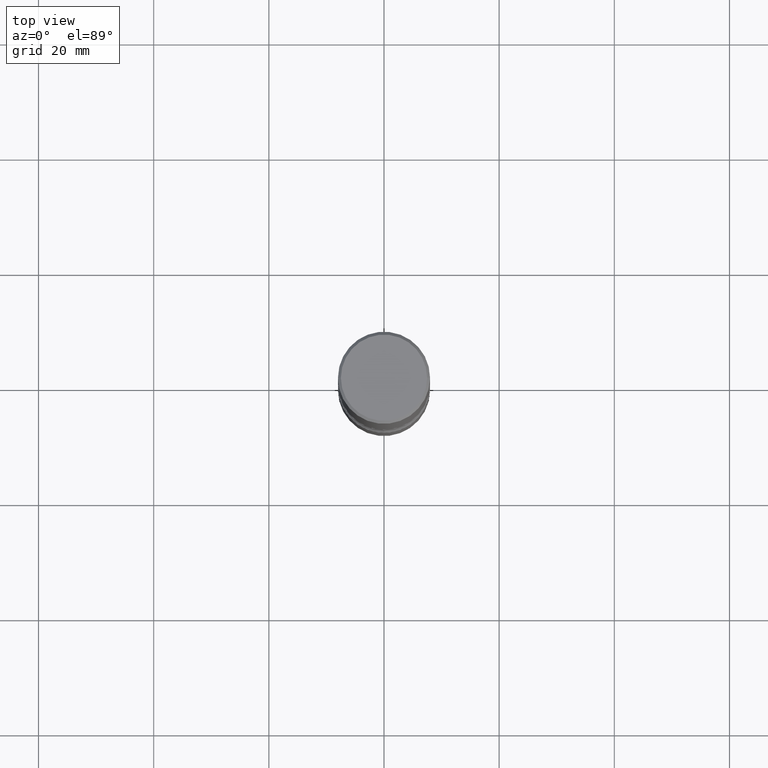
[diagram: clean part render]
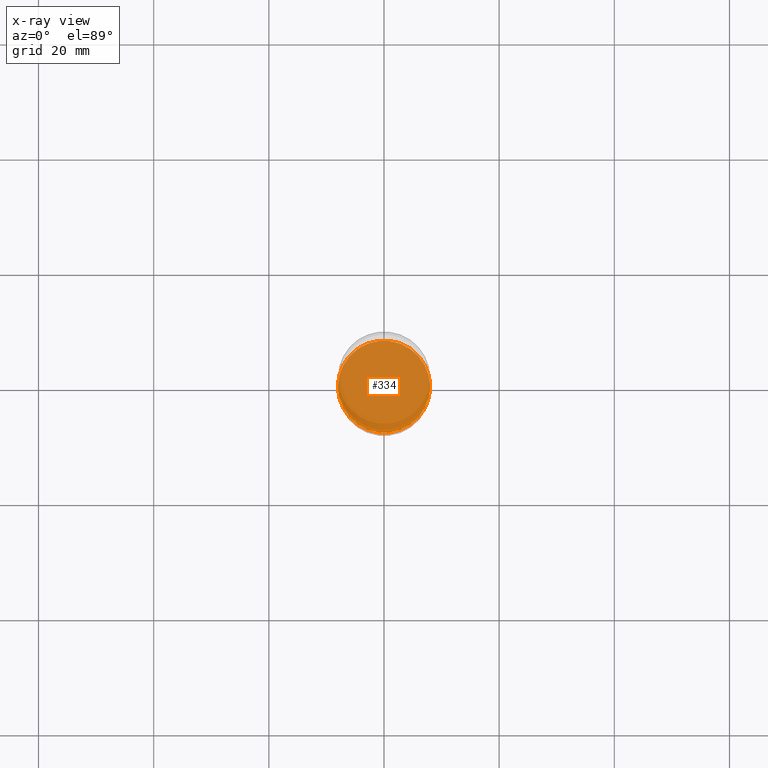
[diagram: x-ray — body ghosted, one internal face saturated and labeled with its STEP entity id]
A machine part, top view, then the same camera in x-ray: the body is ghosted and one INTERNAL B-rep face — a face not visible from any outside direction — is saturated and labeled: STEP entity #334.
In plain terms, the highlighted planar face has unit normal (0, -0, -1).
Its self-contained STEP definition (entity closure, byte-faithful):
#8 = PLANE ( 'NONE',  #161 ) ;
#12 = FACE_OUTER_BOUND ( 'NONE', #85, .T. ) ;
#27 = VERTEX_POINT ( 'NONE', #153 ) ;
#47 = DIRECTION ( 'NONE',  ( 1.000000000000000000, -6.982962677686263555E-15, 0.000000000000000000 ) ) ;
#53 = DIRECTION ( 'NONE',  ( 2.438088387897960049E-29, -3.491481338843145188E-15, -1.000000000000000000 ) ) ;
#69 = EDGE_CURVE ( 'NONE', #463, #27, #546, .T. ) ;
#85 = EDGE_LOOP ( 'NONE', ( #465, #536 ) ) ;
#100 = CARTESIAN_POINT ( 'NONE',  ( -0.3149500000000002853, -1.233297015105071824E-14, -3.543300000000000782 ) ) ;
#146 = DIRECTION ( 'NONE',  ( -2.445468806185136597E-29, 3.491481338843145583E-15, 1.000000000000000000 ) ) ;
#153 = CARTESIAN_POINT ( 'NONE',  ( 0.3149500000000002853, -1.457064992326021168E-14, -3.543300000000000782 ) ) ;
#161 = AXIS2_PLACEMENT_3D ( 'NONE', #475, #53, #182 ) ;
#182 = DIRECTION ( 'NONE',  ( -1.000000000000000000, 6.982962677686265922E-15, -4.876176775795935793E-29 ) ) ;
#257 = CARTESIAN_POINT ( 'NONE',  ( 8.665029620955796311E-29, -1.237136582792292023E-14, -3.543300000000000782 ) ) ;
#258 = AXIS2_PLACEMENT_3D ( 'NONE', #528, #146, #315 ) ;
#315 = DIRECTION ( 'NONE',  ( 1.000000000000000000, -6.982962677686263555E-15, 0.000000000000000000 ) ) ;
#334 = ADVANCED_FACE ( 'NONE', ( #12 ), #8, .F. ) ;
#371 = EDGE_CURVE ( 'NONE', #27, #463, #524, .T. ) ;
#391 = AXIS2_PLACEMENT_3D ( 'NONE', #257, #432, #47 ) ;
#432 = DIRECTION ( 'NONE',  ( -2.445468806185136597E-29, 3.491481338843145583E-15, 1.000000000000000000 ) ) ;
#463 = VERTEX_POINT ( 'NONE', #100 ) ;
#465 = ORIENTED_EDGE ( 'NONE', *, *, #371, .T. ) ;
#475 = CARTESIAN_POINT ( 'NONE',  ( 4.372705008681123089E-29, -1.851821897664530113E-14, -3.543300000000000338 ) ) ;
#524 = CIRCLE ( 'NONE', #391, 0.3149500000000002853 ) ;
#528 = CARTESIAN_POINT ( 'NONE',  ( 8.665029620955796311E-29, -1.237136582792292023E-14, -3.543300000000000782 ) ) ;
#536 = ORIENTED_EDGE ( 'NONE', *, *, #69, .T. ) ;
#546 = CIRCLE ( 'NONE', #258, 0.3149500000000002853 ) ;